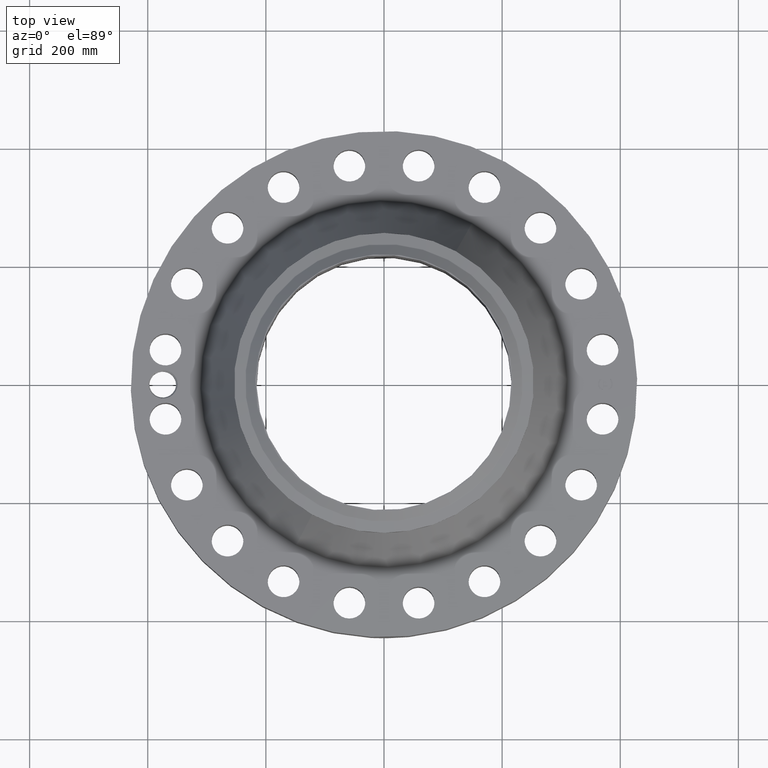
[diagram: clean part render]
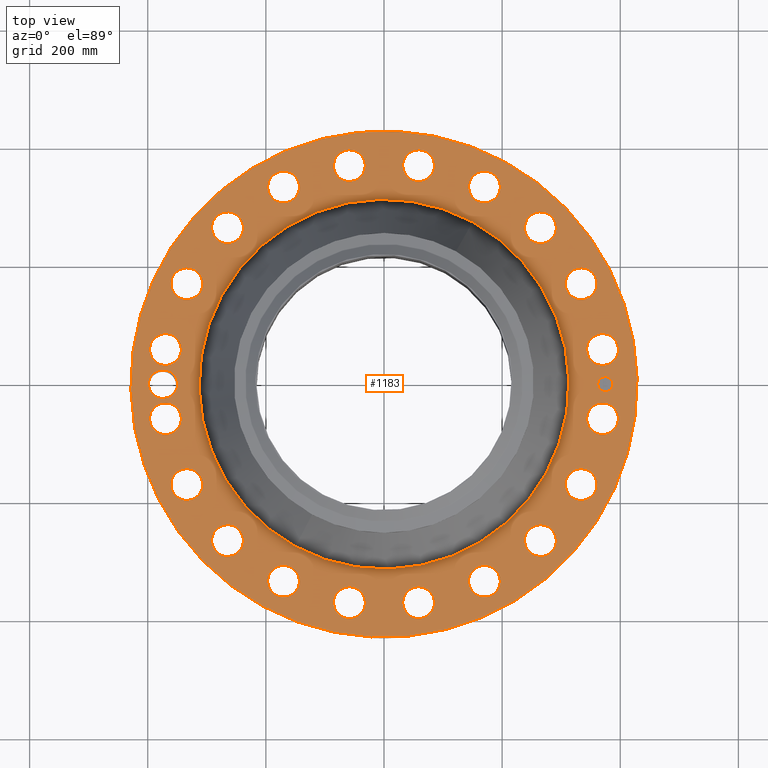
[diagram: same view with one face highlighted and labeled with its STEP entity id]
A machine part, top view. The second image highlights one B-rep face of the part: STEP entity #1183.
In plain terms, the highlighted planar face has unit normal (0, 0, -1).
Its self-contained STEP definition (entity closure, byte-faithful):
#58=AXIS2_PLACEMENT_3D('Circle Axis2P3D',#56,#57,$) ;
#623=AXIS2_PLACEMENT_3D('Circle Axis2P3D',#621,#622,$) ;
#723=AXIS2_PLACEMENT_3D('Plane Axis2P3D',#720,#721,#722) ;
#771=AXIS2_PLACEMENT_3D('Circle Axis2P3D',#769,#770,$) ;
#778=AXIS2_PLACEMENT_3D('Circle Axis2P3D',#776,#777,$) ;
#789=AXIS2_PLACEMENT_3D('Circle Axis2P3D',#787,#788,$) ;
#798=AXIS2_PLACEMENT_3D('Circle Axis2P3D',#796,#797,$) ;
#807=AXIS2_PLACEMENT_3D('Circle Axis2P3D',#805,#806,$) ;
#816=AXIS2_PLACEMENT_3D('Circle Axis2P3D',#814,#815,$) ;
#825=AXIS2_PLACEMENT_3D('Circle Axis2P3D',#823,#824,$) ;
#834=AXIS2_PLACEMENT_3D('Circle Axis2P3D',#832,#833,$) ;
#843=AXIS2_PLACEMENT_3D('Circle Axis2P3D',#841,#842,$) ;
#852=AXIS2_PLACEMENT_3D('Circle Axis2P3D',#850,#851,$) ;
#861=AXIS2_PLACEMENT_3D('Circle Axis2P3D',#859,#860,$) ;
#870=AXIS2_PLACEMENT_3D('Circle Axis2P3D',#868,#869,$) ;
#879=AXIS2_PLACEMENT_3D('Circle Axis2P3D',#877,#878,$) ;
#888=AXIS2_PLACEMENT_3D('Circle Axis2P3D',#886,#887,$) ;
#897=AXIS2_PLACEMENT_3D('Circle Axis2P3D',#895,#896,$) ;
#906=AXIS2_PLACEMENT_3D('Circle Axis2P3D',#904,#905,$) ;
#915=AXIS2_PLACEMENT_3D('Circle Axis2P3D',#913,#914,$) ;
#924=AXIS2_PLACEMENT_3D('Circle Axis2P3D',#922,#923,$) ;
#933=AXIS2_PLACEMENT_3D('Circle Axis2P3D',#931,#932,$) ;
#942=AXIS2_PLACEMENT_3D('Circle Axis2P3D',#940,#941,$) ;
#951=AXIS2_PLACEMENT_3D('Circle Axis2P3D',#949,#950,$) ;
#960=AXIS2_PLACEMENT_3D('Circle Axis2P3D',#958,#959,$) ;
#969=AXIS2_PLACEMENT_3D('Circle Axis2P3D',#967,#968,$) ;
#978=AXIS2_PLACEMENT_3D('Circle Axis2P3D',#976,#977,$) ;
#987=AXIS2_PLACEMENT_3D('Circle Axis2P3D',#985,#986,$) ;
#996=AXIS2_PLACEMENT_3D('Circle Axis2P3D',#994,#995,$) ;
#1005=AXIS2_PLACEMENT_3D('Circle Axis2P3D',#1003,#1004,$) ;
#1014=AXIS2_PLACEMENT_3D('Circle Axis2P3D',#1012,#1013,$) ;
#1023=AXIS2_PLACEMENT_3D('Circle Axis2P3D',#1021,#1022,$) ;
#1032=AXIS2_PLACEMENT_3D('Circle Axis2P3D',#1030,#1031,$) ;
#1041=AXIS2_PLACEMENT_3D('Circle Axis2P3D',#1039,#1040,$) ;
#1050=AXIS2_PLACEMENT_3D('Circle Axis2P3D',#1048,#1049,$) ;
#1059=AXIS2_PLACEMENT_3D('Circle Axis2P3D',#1057,#1058,$) ;
#1068=AXIS2_PLACEMENT_3D('Circle Axis2P3D',#1066,#1067,$) ;
#1077=AXIS2_PLACEMENT_3D('Circle Axis2P3D',#1075,#1076,$) ;
#1086=AXIS2_PLACEMENT_3D('Circle Axis2P3D',#1084,#1085,$) ;
#1095=AXIS2_PLACEMENT_3D('Circle Axis2P3D',#1093,#1094,$) ;
#1104=AXIS2_PLACEMENT_3D('Circle Axis2P3D',#1102,#1103,$) ;
#1113=AXIS2_PLACEMENT_3D('Circle Axis2P3D',#1111,#1112,$) ;
#1122=AXIS2_PLACEMENT_3D('Circle Axis2P3D',#1120,#1121,$) ;
#1131=AXIS2_PLACEMENT_3D('Circle Axis2P3D',#1129,#1130,$) ;
#1140=AXIS2_PLACEMENT_3D('Circle Axis2P3D',#1138,#1139,$) ;
#1149=AXIS2_PLACEMENT_3D('Circle Axis2P3D',#1147,#1148,$) ;
#1158=AXIS2_PLACEMENT_3D('Circle Axis2P3D',#1156,#1157,$) ;
#1167=AXIS2_PLACEMENT_3D('Circle Axis2P3D',#1165,#1166,$) ;
#1176=AXIS2_PLACEMENT_3D('Circle Axis2P3D',#1174,#1175,$) ;
#53=CARTESIAN_POINT('Vertex',(-8.09030596398,-14.809205732,4.50000000002)) ;
#56=CARTESIAN_POINT('Axis2P3D Location',(0.,0.,4.50000000002)) ;
#60=CARTESIAN_POINT('Vertex',(8.09030596398,14.809205732,4.50000000002)) ;
#621=CARTESIAN_POINT('Axis2P3D Location',(0.,0.,4.50000000002)) ;
#720=CARTESIAN_POINT('Axis2P3D Location',(0.,16.8750000001,4.50000000002)) ;
#730=CARTESIAN_POINT('Control Point',(-13.7500000001,2.23792987641E-015,4.50000000002)) ;
#731=CARTESIAN_POINT('Control Point',(-13.7527320333,0.0777574180483,4.50000000002)) ;
#732=CARTESIAN_POINT('Control Point',(-13.7630267408,0.155123962875,4.50000000002)) ;
#733=CARTESIAN_POINT('Control Point',(-13.7808346449,0.231106951049,4.50000000002)) ;
#734=CARTESIAN_POINT('Control Point',(-13.8351598251,0.390627710537,4.50000000002)) ;
#735=CARTESIAN_POINT('Control Point',(-13.9215929636,0.534881474983,4.50000000002)) ;
#736=CARTESIAN_POINT('Control Point',(-13.9767765017,0.606722308653,4.50000000002)) ;
#737=CARTESIAN_POINT('Control Point',(-14.0934103937,0.726912109236,4.50000000002)) ;
#738=CARTESIAN_POINT('Control Point',(-14.2321011668,0.819211282708,4.50000000002)) ;
#739=CARTESIAN_POINT('Control Point',(-14.3000185616,0.855244091758,4.50000000002)) ;
#740=CARTESIAN_POINT('Control Point',(-14.3993955698,0.89588132189,4.50000000002)) ;
#741=CARTESIAN_POINT('Control Point',(-14.5027664811,0.92218406824,4.50000000002)) ;
#742=CARTESIAN_POINT('Control Point',(-14.5326223827,0.928521047298,4.50000000002)) ;
#743=CARTESIAN_POINT('Control Point',(-14.5626768886,0.933653117147,4.50000000002)) ;
#744=CARTESIAN_POINT('Control Point',(-14.5928639743,0.937573299493,4.50000000002)) ;
#745=CARTESIAN_POINT('Vertex',(-13.7500000001,2.23792987641E-015,4.50000000002)) ;
#747=CARTESIAN_POINT('Vertex',(-14.5928639743,0.937573299493,4.50000000002)) ;
#751=CARTESIAN_POINT('Control Point',(-13.7500000001,0.,4.50000000002)) ;
#752=CARTESIAN_POINT('Control Point',(-13.75273251,-0.0777709827214,4.50000000002)) ;
#753=CARTESIAN_POINT('Control Point',(-13.763030334,-0.155150956587,4.50000000002)) ;
#754=CARTESIAN_POINT('Control Point',(-13.7808377995,-0.231132715518,4.50000000002)) ;
#755=CARTESIAN_POINT('Control Point',(-13.8351696236,-0.390677848108,4.50000000002)) ;
#756=CARTESIAN_POINT('Control Point',(-13.9215797841,-0.534880316813,4.50000000002)) ;
#757=CARTESIAN_POINT('Control Point',(-13.9767536374,-0.606694388306,4.50000000002)) ;
#758=CARTESIAN_POINT('Control Point',(-14.1023423701,-0.736111678134,4.50000000002)) ;
#759=CARTESIAN_POINT('Control Point',(-14.2534462987,-0.833176845481,4.50000000002)) ;
#760=CARTESIAN_POINT('Control Point',(-14.3341656113,-0.872657434451,4.50000000002)) ;
#761=CARTESIAN_POINT('Control Point',(-14.4356164786,-0.908372798689,4.50000000002)) ;
#762=CARTESIAN_POINT('Control Point',(-14.5401418402,-0.929488547615,4.50000000002)) ;
#763=CARTESIAN_POINT('Control Point',(-14.5577843852,-0.9326224034,4.50000000002)) ;
#764=CARTESIAN_POINT('Control Point',(-14.575487957,-0.935338798266,4.50000000002)) ;
#765=CARTESIAN_POINT('Control Point',(-14.5932394402,-0.937636149777,4.50000000002)) ;
#766=CARTESIAN_POINT('Vertex',(-14.5932394402,-0.937636149777,4.50000000002)) ;
#769=CARTESIAN_POINT('Axis2P3D Location',(-14.7500000001,-6.71378962923E-015,4.50000000002)) ;
#773=CARTESIAN_POINT('Vertex',(-15.5842738625,0.455765888276,4.50000000002)) ;
#776=CARTESIAN_POINT('Axis2P3D Location',(-14.7500000001,-6.71378962923E-015,4.50000000002)) ;
#787=CARTESIAN_POINT('Axis2P3D Location',(14.5684030238,-2.30740835935,4.50000000002)) ;
#791=CARTESIAN_POINT('Vertex',(13.6381655082,-1.79921728843,4.50000000002)) ;
#793=CARTESIAN_POINT('Vertex',(15.4986405394,-2.81559943028,4.50000000002)) ;
#796=CARTESIAN_POINT('Axis2P3D Location',(14.5684030238,-2.30740835935,4.50000000002)) ;
#805=CARTESIAN_POINT('Axis2P3D Location',(0.,0.,4.50000000002)) ;
#809=CARTESIAN_POINT('Vertex',(-5.90892739857,-10.8162190516,4.50000000002)) ;
#811=CARTESIAN_POINT('Vertex',(5.90892739857,10.8162190516,4.50000000002)) ;
#814=CARTESIAN_POINT('Axis2P3D Location',(0.,0.,4.50000000002)) ;
#823=CARTESIAN_POINT('Axis2P3D Location',(13.1423462318,-6.69635987119,4.50000000002)) ;
#827=CARTESIAN_POINT('Vertex',(13.8700150054,-7.46713750184,4.50000000002)) ;
#829=CARTESIAN_POINT('Vertex',(12.4146774582,-5.92558224053,4.50000000002)) ;
#832=CARTESIAN_POINT('Axis2P3D Location',(13.1423462318,-6.69635987119,4.50000000002)) ;
#841=CARTESIAN_POINT('Axis2P3D Location',(10.4298250225,-10.4298250225,4.50000000002)) ;
#845=CARTESIAN_POINT('Vertex',(10.8836957646,-11.3877401281,4.50000000002)) ;
#847=CARTESIAN_POINT('Vertex',(9.97595428045,-9.47190991697,4.50000000002)) ;
#850=CARTESIAN_POINT('Axis2P3D Location',(10.4298250225,-10.4298250225,4.50000000002)) ;
#859=CARTESIAN_POINT('Axis2P3D Location',(6.69635987119,-13.1423462318,4.50000000002)) ;
#863=CARTESIAN_POINT('Vertex',(6.83200455122,-14.1936314076,4.50000000002)) ;
#865=CARTESIAN_POINT('Vertex',(6.56071519115,-12.0910610561,4.50000000002)) ;
#868=CARTESIAN_POINT('Axis2P3D Location',(6.69635987119,-13.1423462318,4.50000000002)) ;
#877=CARTESIAN_POINT('Axis2P3D Location',(2.30740835935,-14.5684030238,4.50000000002)) ;
#881=CARTESIAN_POINT('Vertex',(2.11154913096,-15.6101511521,4.50000000002)) ;
#883=CARTESIAN_POINT('Vertex',(2.50326758775,-13.5266548956,4.50000000002)) ;
#886=CARTESIAN_POINT('Axis2P3D Location',(2.30740835935,-14.5684030238,4.50000000002)) ;
#895=CARTESIAN_POINT('Axis2P3D Location',(-2.30740835935,-14.5684030238,4.50000000002)) ;
#899=CARTESIAN_POINT('Vertex',(-2.81559943028,-15.4986405394,4.50000000002)) ;
#901=CARTESIAN_POINT('Vertex',(-1.79921728843,-13.6381655082,4.50000000002)) ;
#904=CARTESIAN_POINT('Axis2P3D Location',(-2.30740835935,-14.5684030238,4.50000000002)) ;
#913=CARTESIAN_POINT('Axis2P3D Location',(-6.69635987119,-13.1423462318,4.50000000002)) ;
#917=CARTESIAN_POINT('Vertex',(-7.46713750184,-13.8700150054,4.50000000002)) ;
#919=CARTESIAN_POINT('Vertex',(-5.92558224053,-12.4146774582,4.50000000002)) ;
#922=CARTESIAN_POINT('Axis2P3D Location',(-6.69635987119,-13.1423462318,4.50000000002)) ;
#931=CARTESIAN_POINT('Axis2P3D Location',(-10.4298250225,-10.4298250225,4.50000000002)) ;
#935=CARTESIAN_POINT('Vertex',(-11.3877401281,-10.8836957646,4.50000000002)) ;
#937=CARTESIAN_POINT('Vertex',(-9.47190991697,-9.97595428045,4.50000000002)) ;
#940=CARTESIAN_POINT('Axis2P3D Location',(-10.4298250225,-10.4298250225,4.50000000002)) ;
#949=CARTESIAN_POINT('Axis2P3D Location',(-13.1423462318,-6.69635987119,4.50000000002)) ;
#953=CARTESIAN_POINT('Vertex',(-14.1936314076,-6.83200455122,4.50000000002)) ;
#955=CARTESIAN_POINT('Vertex',(-12.0910610561,-6.56071519115,4.50000000002)) ;
#958=CARTESIAN_POINT('Axis2P3D Location',(-13.1423462318,-6.69635987119,4.50000000002)) ;
#967=CARTESIAN_POINT('Axis2P3D Location',(-14.5684030238,-2.30740835935,4.50000000002)) ;
#971=CARTESIAN_POINT('Vertex',(-15.6101511521,-2.11154913096,4.50000000002)) ;
#973=CARTESIAN_POINT('Vertex',(-13.5266548956,-2.50326758775,4.50000000002)) ;
#976=CARTESIAN_POINT('Axis2P3D Location',(-14.5684030238,-2.30740835935,4.50000000002)) ;
#985=CARTESIAN_POINT('Axis2P3D Location',(-14.5684030238,2.30740835935,4.50000000002)) ;
#989=CARTESIAN_POINT('Vertex',(-15.4986405394,2.81559943028,4.50000000002)) ;
#991=CARTESIAN_POINT('Vertex',(-13.6381655082,1.79921728843,4.50000000002)) ;
#994=CARTESIAN_POINT('Axis2P3D Location',(-14.5684030238,2.30740835935,4.50000000002)) ;
#1003=CARTESIAN_POINT('Axis2P3D Location',(-13.1423462318,6.69635987119,4.50000000002)) ;
#1007=CARTESIAN_POINT('Vertex',(-13.8700150054,7.46713750184,4.50000000002)) ;
#1009=CARTESIAN_POINT('Vertex',(-12.4146774582,5.92558224053,4.50000000002)) ;
#1012=CARTESIAN_POINT('Axis2P3D Location',(-13.1423462318,6.69635987119,4.50000000002)) ;
#1021=CARTESIAN_POINT('Axis2P3D Location',(-10.4298250225,10.4298250225,4.50000000002)) ;
#1025=CARTESIAN_POINT('Vertex',(-10.8836957646,11.3877401281,4.50000000002)) ;
#1027=CARTESIAN_POINT('Vertex',(-9.97595428045,9.47190991697,4.50000000002)) ;
#1030=CARTESIAN_POINT('Axis2P3D Location',(-10.4298250225,10.4298250225,4.50000000002)) ;
#1039=CARTESIAN_POINT('Axis2P3D Location',(-6.69635987119,13.1423462318,4.50000000002)) ;
#1043=CARTESIAN_POINT('Vertex',(-6.83200455122,14.1936314076,4.50000000002)) ;
#1045=CARTESIAN_POINT('Vertex',(-6.56071519115,12.0910610561,4.50000000002)) ;
#1048=CARTESIAN_POINT('Axis2P3D Location',(-6.69635987119,13.1423462318,4.50000000002)) ;
#1057=CARTESIAN_POINT('Axis2P3D Location',(-2.30740835935,14.5684030238,4.50000000002)) ;
#1061=CARTESIAN_POINT('Vertex',(-2.11154913096,15.6101511521,4.50000000002)) ;
#1063=CARTESIAN_POINT('Vertex',(-2.50326758775,13.5266548956,4.50000000002)) ;
#1066=CARTESIAN_POINT('Axis2P3D Location',(-2.30740835935,14.5684030238,4.50000000002)) ;
#1075=CARTESIAN_POINT('Axis2P3D Location',(2.30740835935,14.5684030238,4.50000000002)) ;
#1079=CARTESIAN_POINT('Vertex',(2.81559943028,15.4986405394,4.50000000002)) ;
#1081=CARTESIAN_POINT('Vertex',(1.79921728843,13.6381655082,4.50000000002)) ;
#1084=CARTESIAN_POINT('Axis2P3D Location',(2.30740835935,14.5684030238,4.50000000002)) ;
#1093=CARTESIAN_POINT('Axis2P3D Location',(6.69635987119,13.1423462318,4.50000000002)) ;
#1097=CARTESIAN_POINT('Vertex',(7.46713750184,13.8700150054,4.50000000002)) ;
#1099=CARTESIAN_POINT('Vertex',(5.92558224053,12.4146774582,4.50000000002)) ;
#1102=CARTESIAN_POINT('Axis2P3D Location',(6.69635987119,13.1423462318,4.50000000002)) ;
#1111=CARTESIAN_POINT('Axis2P3D Location',(10.4298250225,10.4298250225,4.50000000002)) ;
#1115=CARTESIAN_POINT('Vertex',(11.3877401281,10.8836957646,4.50000000002)) ;
#1117=CARTESIAN_POINT('Vertex',(9.47190991697,9.97595428045,4.50000000002)) ;
#1120=CARTESIAN_POINT('Axis2P3D Location',(10.4298250225,10.4298250225,4.50000000002)) ;
#1129=CARTESIAN_POINT('Axis2P3D Location',(13.1423462318,6.69635987119,4.50000000002)) ;
#1133=CARTESIAN_POINT('Vertex',(14.1936314076,6.83200455122,4.50000000002)) ;
#1135=CARTESIAN_POINT('Vertex',(12.0910610561,6.56071519115,4.50000000002)) ;
#1138=CARTESIAN_POINT('Axis2P3D Location',(13.1423462318,6.69635987119,4.50000000002)) ;
#1147=CARTESIAN_POINT('Axis2P3D Location',(14.5684030238,2.30740835935,4.50000000002)) ;
#1151=CARTESIAN_POINT('Vertex',(15.6101511521,2.11154913096,4.50000000002)) ;
#1153=CARTESIAN_POINT('Vertex',(13.5266548956,2.50326758775,4.50000000002)) ;
#1156=CARTESIAN_POINT('Axis2P3D Location',(14.5684030238,2.30740835935,4.50000000002)) ;
#1165=CARTESIAN_POINT('Axis2P3D Location',(14.7500000001,-1.34275792585E-013,4.50000000002)) ;
#1169=CARTESIAN_POINT('Vertex',(14.7500000001,0.499999995002,4.50000000002)) ;
#1171=CARTESIAN_POINT('Vertex',(14.7500000001,-0.499999995002,4.50000000002)) ;
#1174=CARTESIAN_POINT('Axis2P3D Location',(14.7500000001,-1.34275792585E-013,4.50000000002)) ;
#57=DIRECTION('Axis2P3D Direction',(0.,0.,-0.0393700787402)) ;
#622=DIRECTION('Axis2P3D Direction',(0.,0.,-0.0393700787402)) ;
#721=DIRECTION('Axis2P3D Direction',(0.,0.,-0.0393700787402)) ;
#722=DIRECTION('Axis2P3D XDirection',(0.0393700787402,0.,0.)) ;
#770=DIRECTION('Axis2P3D Direction',(0.,0.,-0.0393700787402)) ;
#777=DIRECTION('Axis2P3D Direction',(0.,0.,-0.0393700787402)) ;
#788=DIRECTION('Axis2P3D Direction',(0.,0.,-0.0393700787402)) ;
#797=DIRECTION('Axis2P3D Direction',(0.,0.,-0.0393700787402)) ;
#806=DIRECTION('Axis2P3D Direction',(0.,0.,-0.0393700787402)) ;
#815=DIRECTION('Axis2P3D Direction',(0.,0.,-0.0393700787402)) ;
#824=DIRECTION('Axis2P3D Direction',(0.,0.,-0.0393700787402)) ;
#833=DIRECTION('Axis2P3D Direction',(0.,0.,-0.0393700787402)) ;
#842=DIRECTION('Axis2P3D Direction',(0.,0.,-0.0393700787402)) ;
#851=DIRECTION('Axis2P3D Direction',(0.,0.,-0.0393700787402)) ;
#860=DIRECTION('Axis2P3D Direction',(0.,0.,-0.0393700787402)) ;
#869=DIRECTION('Axis2P3D Direction',(0.,0.,-0.0393700787402)) ;
#878=DIRECTION('Axis2P3D Direction',(0.,0.,-0.0393700787402)) ;
#887=DIRECTION('Axis2P3D Direction',(0.,0.,-0.0393700787402)) ;
#896=DIRECTION('Axis2P3D Direction',(0.,0.,-0.0393700787402)) ;
#905=DIRECTION('Axis2P3D Direction',(0.,0.,-0.0393700787402)) ;
#914=DIRECTION('Axis2P3D Direction',(0.,0.,-0.0393700787402)) ;
#923=DIRECTION('Axis2P3D Direction',(0.,0.,-0.0393700787402)) ;
#932=DIRECTION('Axis2P3D Direction',(0.,0.,-0.0393700787402)) ;
#941=DIRECTION('Axis2P3D Direction',(0.,0.,-0.0393700787402)) ;
#950=DIRECTION('Axis2P3D Direction',(0.,0.,-0.0393700787402)) ;
#959=DIRECTION('Axis2P3D Direction',(0.,0.,-0.0393700787402)) ;
#968=DIRECTION('Axis2P3D Direction',(0.,0.,-0.0393700787402)) ;
#977=DIRECTION('Axis2P3D Direction',(0.,0.,-0.0393700787402)) ;
#986=DIRECTION('Axis2P3D Direction',(0.,0.,-0.0393700787402)) ;
#995=DIRECTION('Axis2P3D Direction',(0.,0.,-0.0393700787402)) ;
#1004=DIRECTION('Axis2P3D Direction',(0.,0.,-0.0393700787402)) ;
#1013=DIRECTION('Axis2P3D Direction',(0.,0.,-0.0393700787402)) ;
#1022=DIRECTION('Axis2P3D Direction',(0.,0.,-0.0393700787402)) ;
#1031=DIRECTION('Axis2P3D Direction',(0.,0.,-0.0393700787402)) ;
#1040=DIRECTION('Axis2P3D Direction',(0.,0.,-0.0393700787402)) ;
#1049=DIRECTION('Axis2P3D Direction',(0.,0.,-0.0393700787402)) ;
#1058=DIRECTION('Axis2P3D Direction',(0.,0.,-0.0393700787402)) ;
#1067=DIRECTION('Axis2P3D Direction',(0.,0.,-0.0393700787402)) ;
#1076=DIRECTION('Axis2P3D Direction',(0.,0.,-0.0393700787402)) ;
#1085=DIRECTION('Axis2P3D Direction',(0.,0.,-0.0393700787402)) ;
#1094=DIRECTION('Axis2P3D Direction',(0.,0.,-0.0393700787402)) ;
#1103=DIRECTION('Axis2P3D Direction',(0.,0.,-0.0393700787402)) ;
#1112=DIRECTION('Axis2P3D Direction',(0.,0.,-0.0393700787402)) ;
#1121=DIRECTION('Axis2P3D Direction',(0.,0.,-0.0393700787402)) ;
#1130=DIRECTION('Axis2P3D Direction',(0.,0.,-0.0393700787402)) ;
#1139=DIRECTION('Axis2P3D Direction',(0.,0.,-0.0393700787402)) ;
#1148=DIRECTION('Axis2P3D Direction',(0.,0.,-0.0393700787402)) ;
#1157=DIRECTION('Axis2P3D Direction',(0.,0.,-0.0393700787402)) ;
#1166=DIRECTION('Axis2P3D Direction',(0.,0.,-0.0393700787402)) ;
#1175=DIRECTION('Axis2P3D Direction',(0.,0.,-0.0393700787402)) ;
#726=ORIENTED_EDGE('',*,*,#625,.F.) ;
#727=ORIENTED_EDGE('',*,*,#62,.F.) ;
#782=ORIENTED_EDGE('',*,*,#749,.F.) ;
#783=ORIENTED_EDGE('',*,*,#768,.T.) ;
#784=ORIENTED_EDGE('',*,*,#775,.T.) ;
#785=ORIENTED_EDGE('',*,*,#780,.T.) ;
#802=ORIENTED_EDGE('',*,*,#795,.T.) ;
#803=ORIENTED_EDGE('',*,*,#800,.T.) ;
#820=ORIENTED_EDGE('',*,*,#813,.T.) ;
#821=ORIENTED_EDGE('',*,*,#818,.T.) ;
#838=ORIENTED_EDGE('',*,*,#831,.T.) ;
#839=ORIENTED_EDGE('',*,*,#836,.T.) ;
#856=ORIENTED_EDGE('',*,*,#849,.T.) ;
#857=ORIENTED_EDGE('',*,*,#854,.T.) ;
#874=ORIENTED_EDGE('',*,*,#867,.T.) ;
#875=ORIENTED_EDGE('',*,*,#872,.T.) ;
#892=ORIENTED_EDGE('',*,*,#885,.T.) ;
#893=ORIENTED_EDGE('',*,*,#890,.T.) ;
#910=ORIENTED_EDGE('',*,*,#903,.T.) ;
#911=ORIENTED_EDGE('',*,*,#908,.T.) ;
#928=ORIENTED_EDGE('',*,*,#921,.T.) ;
#929=ORIENTED_EDGE('',*,*,#926,.T.) ;
#946=ORIENTED_EDGE('',*,*,#939,.T.) ;
#947=ORIENTED_EDGE('',*,*,#944,.T.) ;
#964=ORIENTED_EDGE('',*,*,#957,.T.) ;
#965=ORIENTED_EDGE('',*,*,#962,.T.) ;
#982=ORIENTED_EDGE('',*,*,#975,.T.) ;
#983=ORIENTED_EDGE('',*,*,#980,.T.) ;
#1000=ORIENTED_EDGE('',*,*,#993,.T.) ;
#1001=ORIENTED_EDGE('',*,*,#998,.T.) ;
#1018=ORIENTED_EDGE('',*,*,#1011,.T.) ;
#1019=ORIENTED_EDGE('',*,*,#1016,.T.) ;
#1036=ORIENTED_EDGE('',*,*,#1029,.T.) ;
#1037=ORIENTED_EDGE('',*,*,#1034,.T.) ;
#1054=ORIENTED_EDGE('',*,*,#1047,.T.) ;
#1055=ORIENTED_EDGE('',*,*,#1052,.T.) ;
#1072=ORIENTED_EDGE('',*,*,#1065,.T.) ;
#1073=ORIENTED_EDGE('',*,*,#1070,.T.) ;
#1090=ORIENTED_EDGE('',*,*,#1083,.T.) ;
#1091=ORIENTED_EDGE('',*,*,#1088,.T.) ;
#1108=ORIENTED_EDGE('',*,*,#1101,.T.) ;
#1109=ORIENTED_EDGE('',*,*,#1106,.T.) ;
#1126=ORIENTED_EDGE('',*,*,#1119,.T.) ;
#1127=ORIENTED_EDGE('',*,*,#1124,.T.) ;
#1144=ORIENTED_EDGE('',*,*,#1137,.T.) ;
#1145=ORIENTED_EDGE('',*,*,#1142,.T.) ;
#1162=ORIENTED_EDGE('',*,*,#1155,.T.) ;
#1163=ORIENTED_EDGE('',*,*,#1160,.T.) ;
#1180=ORIENTED_EDGE('',*,*,#1173,.T.) ;
#1181=ORIENTED_EDGE('',*,*,#1178,.T.) ;
#786=FACE_BOUND('',#781,.T.) ;
#804=FACE_BOUND('',#801,.T.) ;
#822=FACE_BOUND('',#819,.T.) ;
#840=FACE_BOUND('',#837,.T.) ;
#858=FACE_BOUND('',#855,.T.) ;
#876=FACE_BOUND('',#873,.T.) ;
#894=FACE_BOUND('',#891,.T.) ;
#912=FACE_BOUND('',#909,.T.) ;
#930=FACE_BOUND('',#927,.T.) ;
#948=FACE_BOUND('',#945,.T.) ;
#966=FACE_BOUND('',#963,.T.) ;
#984=FACE_BOUND('',#981,.T.) ;
#1002=FACE_BOUND('',#999,.T.) ;
#1020=FACE_BOUND('',#1017,.T.) ;
#1038=FACE_BOUND('',#1035,.T.) ;
#1056=FACE_BOUND('',#1053,.T.) ;
#1074=FACE_BOUND('',#1071,.T.) ;
#1092=FACE_BOUND('',#1089,.T.) ;
#1110=FACE_BOUND('',#1107,.T.) ;
#1128=FACE_BOUND('',#1125,.T.) ;
#1146=FACE_BOUND('',#1143,.T.) ;
#1164=FACE_BOUND('',#1161,.T.) ;
#1182=FACE_BOUND('',#1179,.T.) ;
#1183=ADVANCED_FACE('PartBody',(#728,#786,#804,#822,#840,#858,#876,#894,#912,#930,#948,#966,#984,#1002,#1020,#1038,#1056,#1074,#1092,#1110,#1128,#1146,#1164,#1182),#724,.F.) ;
#729=B_SPLINE_CURVE_WITH_KNOTS('',5,(#730,#731,#732,#733,#734,#735,#736,#737,#738,#739,#740,#741,#742,#743,#744),.UNSPECIFIED.,.F.,.U.,(6,3,3,3,6),(0.,13.6058656611,29.4810729603,43.0827639214,48.5382730769),.UNSPECIFIED.) ;
#750=B_SPLINE_CURVE_WITH_KNOTS('',5,(#751,#752,#753,#754,#755,#756,#757,#758,#759,#760,#761,#762,#763,#764,#765),.UNSPECIFIED.,.F.,.U.,(6,3,3,3,6),(0.,13.6082391855,29.497343973,45.3928575983,48.6043428115),.UNSPECIFIED.) ;
#59=CIRCLE('generated circle',#58,16.8750000001) ;
#624=CIRCLE('generated circle',#623,16.8750000001) ;
#772=CIRCLE('generated circle',#771,0.950650000004) ;
#779=CIRCLE('generated circle',#778,0.950650000004) ;
#790=CIRCLE('generated circle',#789,1.06) ;
#799=CIRCLE('generated circle',#798,1.06) ;
#808=CIRCLE('generated circle',#807,12.3250159259) ;
#817=CIRCLE('generated circle',#816,12.3250159259) ;
#826=CIRCLE('generated circle',#825,1.06) ;
#835=CIRCLE('generated circle',#834,1.06) ;
#844=CIRCLE('generated circle',#843,1.06) ;
#853=CIRCLE('generated circle',#852,1.06) ;
#862=CIRCLE('generated circle',#861,1.06) ;
#871=CIRCLE('generated circle',#870,1.06) ;
#880=CIRCLE('generated circle',#879,1.06) ;
#889=CIRCLE('generated circle',#888,1.06) ;
#898=CIRCLE('generated circle',#897,1.06) ;
#907=CIRCLE('generated circle',#906,1.06) ;
#916=CIRCLE('generated circle',#915,1.06) ;
#925=CIRCLE('generated circle',#924,1.06) ;
#934=CIRCLE('generated circle',#933,1.06) ;
#943=CIRCLE('generated circle',#942,1.06) ;
#952=CIRCLE('generated circle',#951,1.06) ;
#961=CIRCLE('generated circle',#960,1.06) ;
#970=CIRCLE('generated circle',#969,1.06) ;
#979=CIRCLE('generated circle',#978,1.06) ;
#988=CIRCLE('generated circle',#987,1.06) ;
#997=CIRCLE('generated circle',#996,1.06) ;
#1006=CIRCLE('generated circle',#1005,1.06) ;
#1015=CIRCLE('generated circle',#1014,1.06) ;
#1024=CIRCLE('generated circle',#1023,1.06) ;
#1033=CIRCLE('generated circle',#1032,1.06) ;
#1042=CIRCLE('generated circle',#1041,1.06) ;
#1051=CIRCLE('generated circle',#1050,1.06) ;
#1060=CIRCLE('generated circle',#1059,1.06) ;
#1069=CIRCLE('generated circle',#1068,1.06) ;
#1078=CIRCLE('generated circle',#1077,1.06) ;
#1087=CIRCLE('generated circle',#1086,1.06) ;
#1096=CIRCLE('generated circle',#1095,1.06) ;
#1105=CIRCLE('generated circle',#1104,1.06) ;
#1114=CIRCLE('generated circle',#1113,1.06) ;
#1123=CIRCLE('generated circle',#1122,1.06) ;
#1132=CIRCLE('generated circle',#1131,1.06) ;
#1141=CIRCLE('generated circle',#1140,1.06) ;
#1150=CIRCLE('generated circle',#1149,1.06) ;
#1159=CIRCLE('generated circle',#1158,1.06) ;
#1168=CIRCLE('generated circle',#1167,0.499999995002) ;
#1177=CIRCLE('generated circle',#1176,0.499999995002) ;
#62=EDGE_CURVE('',#54,#61,#59,.T.) ;
#625=EDGE_CURVE('',#61,#54,#624,.T.) ;
#749=EDGE_CURVE('',#746,#748,#729,.T.) ;
#768=EDGE_CURVE('',#746,#767,#750,.T.) ;
#775=EDGE_CURVE('',#767,#774,#772,.T.) ;
#780=EDGE_CURVE('',#774,#748,#779,.T.) ;
#795=EDGE_CURVE('',#792,#794,#790,.T.) ;
#800=EDGE_CURVE('',#794,#792,#799,.T.) ;
#813=EDGE_CURVE('',#810,#812,#808,.T.) ;
#818=EDGE_CURVE('',#812,#810,#817,.T.) ;
#831=EDGE_CURVE('',#828,#830,#826,.T.) ;
#836=EDGE_CURVE('',#830,#828,#835,.T.) ;
#849=EDGE_CURVE('',#846,#848,#844,.T.) ;
#854=EDGE_CURVE('',#848,#846,#853,.T.) ;
#867=EDGE_CURVE('',#864,#866,#862,.T.) ;
#872=EDGE_CURVE('',#866,#864,#871,.T.) ;
#885=EDGE_CURVE('',#882,#884,#880,.T.) ;
#890=EDGE_CURVE('',#884,#882,#889,.T.) ;
#903=EDGE_CURVE('',#900,#902,#898,.T.) ;
#908=EDGE_CURVE('',#902,#900,#907,.T.) ;
#921=EDGE_CURVE('',#918,#920,#916,.T.) ;
#926=EDGE_CURVE('',#920,#918,#925,.T.) ;
#939=EDGE_CURVE('',#936,#938,#934,.T.) ;
#944=EDGE_CURVE('',#938,#936,#943,.T.) ;
#957=EDGE_CURVE('',#954,#956,#952,.T.) ;
#962=EDGE_CURVE('',#956,#954,#961,.T.) ;
#975=EDGE_CURVE('',#972,#974,#970,.T.) ;
#980=EDGE_CURVE('',#974,#972,#979,.T.) ;
#993=EDGE_CURVE('',#990,#992,#988,.T.) ;
#998=EDGE_CURVE('',#992,#990,#997,.T.) ;
#1011=EDGE_CURVE('',#1008,#1010,#1006,.T.) ;
#1016=EDGE_CURVE('',#1010,#1008,#1015,.T.) ;
#1029=EDGE_CURVE('',#1026,#1028,#1024,.T.) ;
#1034=EDGE_CURVE('',#1028,#1026,#1033,.T.) ;
#1047=EDGE_CURVE('',#1044,#1046,#1042,.T.) ;
#1052=EDGE_CURVE('',#1046,#1044,#1051,.T.) ;
#1065=EDGE_CURVE('',#1062,#1064,#1060,.T.) ;
#1070=EDGE_CURVE('',#1064,#1062,#1069,.T.) ;
#1083=EDGE_CURVE('',#1080,#1082,#1078,.T.) ;
#1088=EDGE_CURVE('',#1082,#1080,#1087,.T.) ;
#1101=EDGE_CURVE('',#1098,#1100,#1096,.T.) ;
#1106=EDGE_CURVE('',#1100,#1098,#1105,.T.) ;
#1119=EDGE_CURVE('',#1116,#1118,#1114,.T.) ;
#1124=EDGE_CURVE('',#1118,#1116,#1123,.T.) ;
#1137=EDGE_CURVE('',#1134,#1136,#1132,.T.) ;
#1142=EDGE_CURVE('',#1136,#1134,#1141,.T.) ;
#1155=EDGE_CURVE('',#1152,#1154,#1150,.T.) ;
#1160=EDGE_CURVE('',#1154,#1152,#1159,.T.) ;
#1173=EDGE_CURVE('',#1170,#1172,#1168,.T.) ;
#1178=EDGE_CURVE('',#1172,#1170,#1177,.T.) ;
#725=EDGE_LOOP('',(#726,#727)) ;
#781=EDGE_LOOP('',(#782,#783,#784,#785)) ;
#801=EDGE_LOOP('',(#802,#803)) ;
#819=EDGE_LOOP('',(#820,#821)) ;
#837=EDGE_LOOP('',(#838,#839)) ;
#855=EDGE_LOOP('',(#856,#857)) ;
#873=EDGE_LOOP('',(#874,#875)) ;
#891=EDGE_LOOP('',(#892,#893)) ;
#909=EDGE_LOOP('',(#910,#911)) ;
#927=EDGE_LOOP('',(#928,#929)) ;
#945=EDGE_LOOP('',(#946,#947)) ;
#963=EDGE_LOOP('',(#964,#965)) ;
#981=EDGE_LOOP('',(#982,#983)) ;
#999=EDGE_LOOP('',(#1000,#1001)) ;
#1017=EDGE_LOOP('',(#1018,#1019)) ;
#1035=EDGE_LOOP('',(#1036,#1037)) ;
#1053=EDGE_LOOP('',(#1054,#1055)) ;
#1071=EDGE_LOOP('',(#1072,#1073)) ;
#1089=EDGE_LOOP('',(#1090,#1091)) ;
#1107=EDGE_LOOP('',(#1108,#1109)) ;
#1125=EDGE_LOOP('',(#1126,#1127)) ;
#1143=EDGE_LOOP('',(#1144,#1145)) ;
#1161=EDGE_LOOP('',(#1162,#1163)) ;
#1179=EDGE_LOOP('',(#1180,#1181)) ;
#728=FACE_OUTER_BOUND('',#725,.T.) ;
#724=PLANE('',#723) ;
#54=VERTEX_POINT('',#53) ;
#61=VERTEX_POINT('',#60) ;
#746=VERTEX_POINT('',#745) ;
#748=VERTEX_POINT('',#747) ;
#767=VERTEX_POINT('',#766) ;
#774=VERTEX_POINT('',#773) ;
#792=VERTEX_POINT('',#791) ;
#794=VERTEX_POINT('',#793) ;
#810=VERTEX_POINT('',#809) ;
#812=VERTEX_POINT('',#811) ;
#828=VERTEX_POINT('',#827) ;
#830=VERTEX_POINT('',#829) ;
#846=VERTEX_POINT('',#845) ;
#848=VERTEX_POINT('',#847) ;
#864=VERTEX_POINT('',#863) ;
#866=VERTEX_POINT('',#865) ;
#882=VERTEX_POINT('',#881) ;
#884=VERTEX_POINT('',#883) ;
#900=VERTEX_POINT('',#899) ;
#902=VERTEX_POINT('',#901) ;
#918=VERTEX_POINT('',#917) ;
#920=VERTEX_POINT('',#919) ;
#936=VERTEX_POINT('',#935) ;
#938=VERTEX_POINT('',#937) ;
#954=VERTEX_POINT('',#953) ;
#956=VERTEX_POINT('',#955) ;
#972=VERTEX_POINT('',#971) ;
#974=VERTEX_POINT('',#973) ;
#990=VERTEX_POINT('',#989) ;
#992=VERTEX_POINT('',#991) ;
#1008=VERTEX_POINT('',#1007) ;
#1010=VERTEX_POINT('',#1009) ;
#1026=VERTEX_POINT('',#1025) ;
#1028=VERTEX_POINT('',#1027) ;
#1044=VERTEX_POINT('',#1043) ;
#1046=VERTEX_POINT('',#1045) ;
#1062=VERTEX_POINT('',#1061) ;
#1064=VERTEX_POINT('',#1063) ;
#1080=VERTEX_POINT('',#1079) ;
#1082=VERTEX_POINT('',#1081) ;
#1098=VERTEX_POINT('',#1097) ;
#1100=VERTEX_POINT('',#1099) ;
#1116=VERTEX_POINT('',#1115) ;
#1118=VERTEX_POINT('',#1117) ;
#1134=VERTEX_POINT('',#1133) ;
#1136=VERTEX_POINT('',#1135) ;
#1152=VERTEX_POINT('',#1151) ;
#1154=VERTEX_POINT('',#1153) ;
#1170=VERTEX_POINT('',#1169) ;
#1172=VERTEX_POINT('',#1171) ;